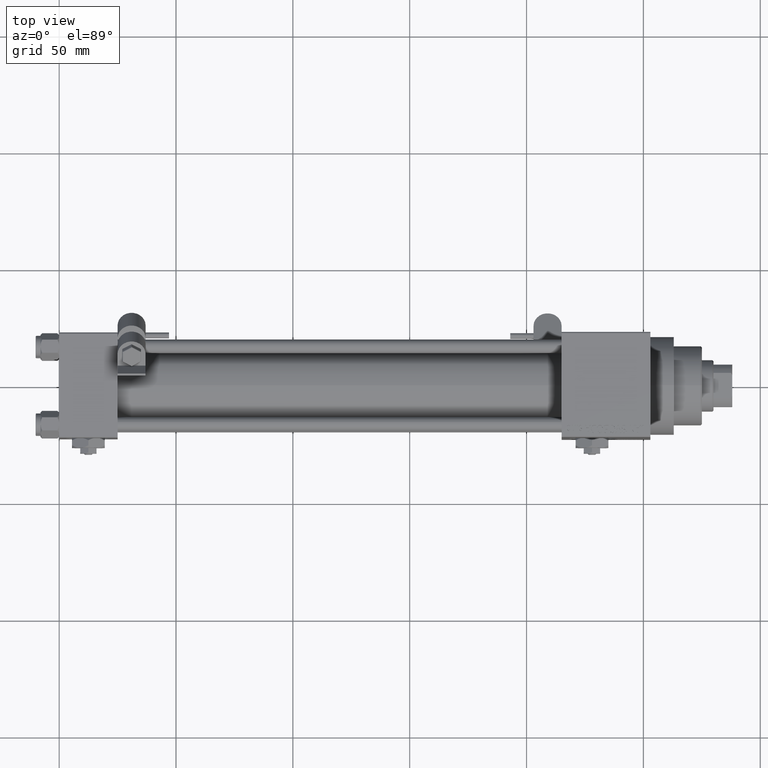
[diagram: clean part render]
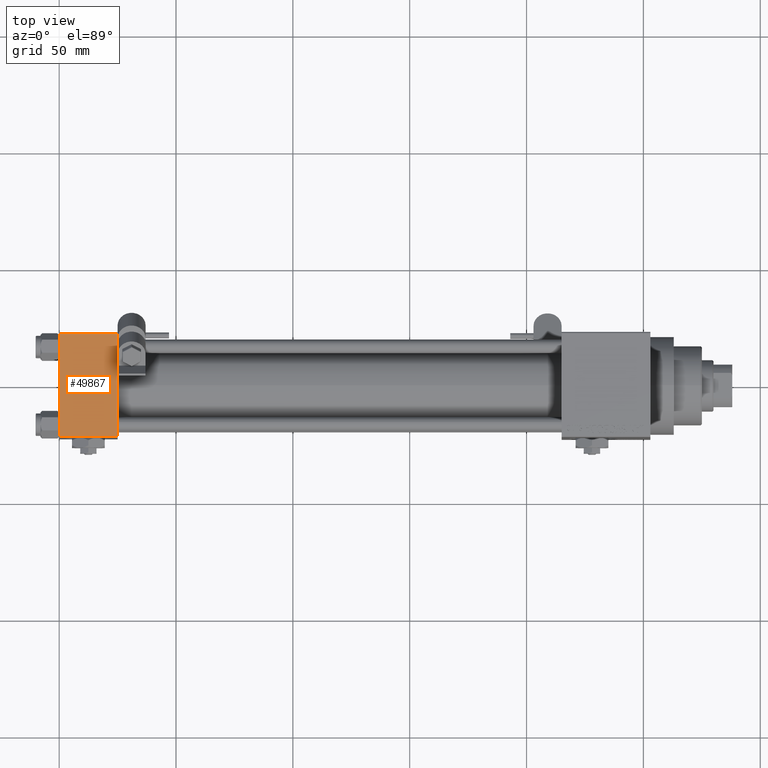
[diagram: same view with one face highlighted and labeled with its STEP entity id]
A machine part, top view. The second image highlights one B-rep face of the part: STEP entity #49867.
In plain terms, the highlighted planar face has unit normal (0, 0, -1).
Its self-contained STEP definition (entity closure, byte-faithful):
#1908 = ORIENTED_EDGE ( 'NONE', *, *, #46133, .T. ) ;
#3557 = CARTESIAN_POINT ( 'NONE',  ( 25.00000000000000000, 22.50000000000000000, 22.50000000000000355 ) ) ;
#3559 = EDGE_CURVE ( 'NONE', #27263, #26359, #46901, .T. ) ;
#5899 = VECTOR ( 'NONE', #43099, 1000.000000000000000 ) ;
#6006 = AXIS2_PLACEMENT_3D ( 'NONE', #3557, #23315, #34484 ) ;
#6322 = VERTEX_POINT ( 'NONE', #13428 ) ;
#7031 = DIRECTION ( 'NONE',  ( 1.000000000000000000, 0.000000000000000000, 0.000000000000000000 ) ) ;
#9427 = ORIENTED_EDGE ( 'NONE', *, *, #9943, .T. ) ;
#9943 = EDGE_CURVE ( 'NONE', #26359, #6322, #49851, .T. ) ;
#13428 = CARTESIAN_POINT ( 'NONE',  ( 25.00000000000000000, -21.99999999999997868, 22.50000000000000000 ) ) ;
#13759 = CARTESIAN_POINT ( 'NONE',  ( 0.000000000000000000, -21.99999999999997868, 22.50000000000000000 ) ) ;
#17750 = VECTOR ( 'NONE', #40257, 1000.000000000000000 ) ;
#22084 = EDGE_CURVE ( 'NONE', #24150, #6322, #24784, .T. ) ;
#23315 = DIRECTION ( 'NONE',  ( 0.000000000000000000, 7.709882115452476934E-17, -1.000000000000000000 ) ) ;
#24150 = VERTEX_POINT ( 'NONE', #46401 ) ;
#24784 = LINE ( 'NONE', #44813, #17750 ) ;
#26359 = VERTEX_POINT ( 'NONE', #13759 ) ;
#27207 = ORIENTED_EDGE ( 'NONE', *, *, #22084, .F. ) ;
#27263 = VERTEX_POINT ( 'NONE', #28362 ) ;
#28357 = CARTESIAN_POINT ( 'NONE',  ( 0.000000000000000000, 22.50000000000000000, 22.50000000000000355 ) ) ;
#28362 = CARTESIAN_POINT ( 'NONE',  ( 0.000000000000000000, 21.99999999999999289, 22.50000000000000355 ) ) ;
#30322 = CARTESIAN_POINT ( 'NONE',  ( 25.00000000000000000, -21.99999999999999289, 22.50000000000000000 ) ) ;
#31172 = PLANE ( 'NONE',  #6006 ) ;
#32599 = VECTOR ( 'NONE', #38830, 1000.000000000000000 ) ;
#34484 = DIRECTION ( 'NONE',  ( 0.000000000000000000, 1.000000000000000000, 7.709882115452476934E-17 ) ) ;
#34776 = LINE ( 'NONE', #37830, #32599 ) ;
#35304 = ORIENTED_EDGE ( 'NONE', *, *, #3559, .T. ) ;
#36103 = VECTOR ( 'NONE', #7031, 1000.000000000000000 ) ;
#37830 = CARTESIAN_POINT ( 'NONE',  ( 0.000000000000000000, 21.99999999999999289, 22.50000000000000355 ) ) ;
#38289 = FACE_OUTER_BOUND ( 'NONE', #44900, .T. ) ;
#38830 = DIRECTION ( 'NONE',  ( -1.000000000000000000, 0.000000000000000000, 0.000000000000000000 ) ) ;
#40257 = DIRECTION ( 'NONE',  ( 0.000000000000000000, -1.000000000000000000, -7.709882115452476934E-17 ) ) ;
#43099 = DIRECTION ( 'NONE',  ( 0.000000000000000000, -1.000000000000000000, -7.709882115452476934E-17 ) ) ;
#44813 = CARTESIAN_POINT ( 'NONE',  ( 25.00000000000000000, 22.50000000000000000, 22.50000000000000355 ) ) ;
#44900 = EDGE_LOOP ( 'NONE', ( #35304, #9427, #27207, #1908 ) ) ;
#46133 = EDGE_CURVE ( 'NONE', #24150, #27263, #34776, .T. ) ;
#46401 = CARTESIAN_POINT ( 'NONE',  ( 25.00000000000000000, 21.99999999999999289, 22.50000000000000355 ) ) ;
#46901 = LINE ( 'NONE', #28357, #5899 ) ;
#49851 = LINE ( 'NONE', #30322, #36103 ) ;
#49867 = ADVANCED_FACE ( 'NONE', ( #38289 ), #31172, .F. ) ;